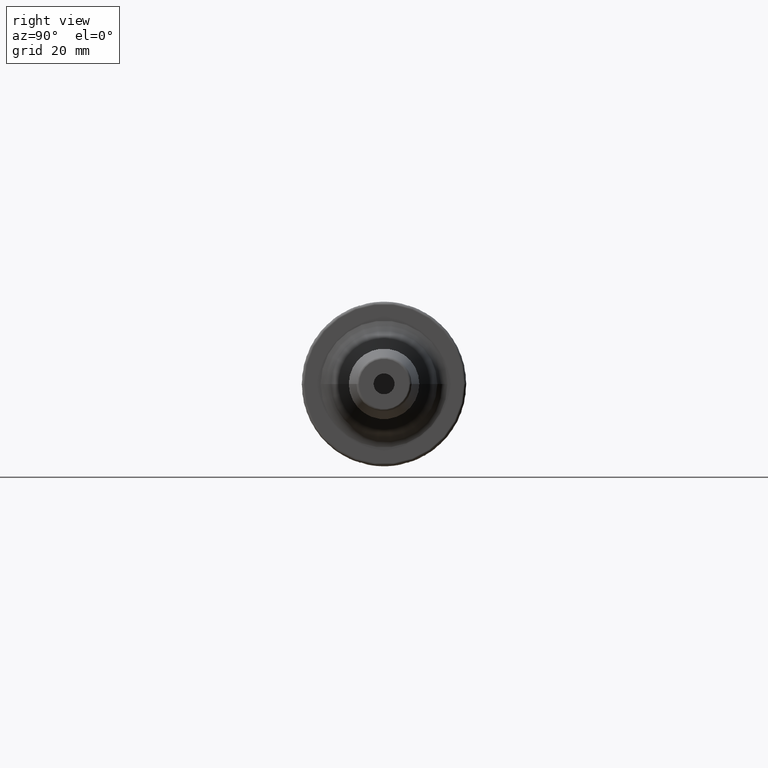
[diagram: clean part render]
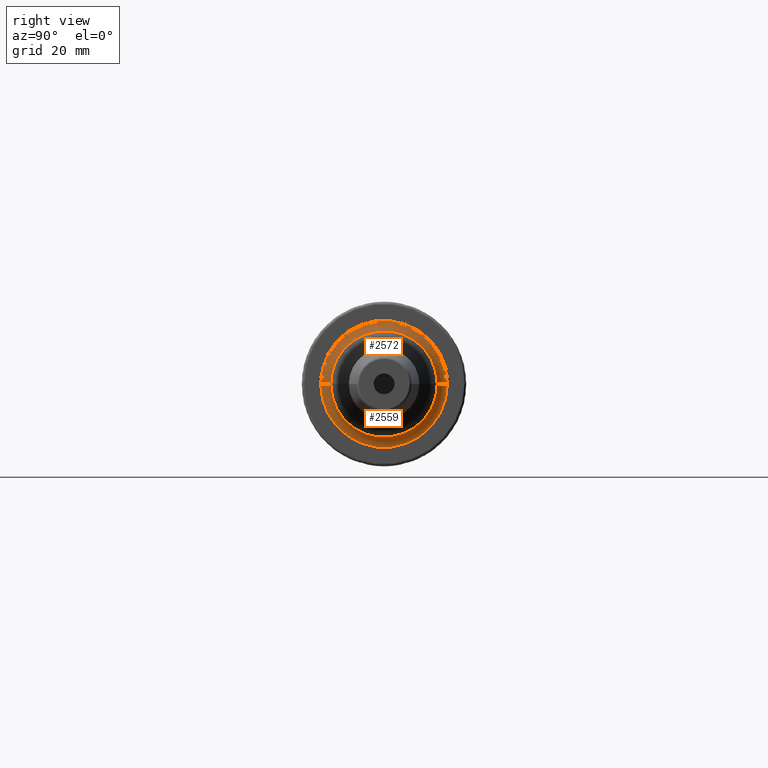
[diagram: same view with one multi-face feature highlighted, each face labeled with its STEP entity id]
A machine part, right view. The highlighted faces form ONE feature: a constant-radius fillet chain: 2 tangent blend faces with common blend radius 4 mm. The faces share edges in the B-rep.
Their STEP definitions:
[1] entity #2559 (Torus):
#836=CARTESIAN_POINT('',(2.7E1,0.E0,0.E0));
#837=DIRECTION('',(1.E0,0.E0,0.E0));
#838=DIRECTION('',(0.E0,-1.E0,0.E0));
#839=AXIS2_PLACEMENT_3D('',#836,#837,#838);
#846=CARTESIAN_POINT('',(3.1E1,-2.425148613529E1,3.502170775604E-12));
#847=DIRECTION('',(0.E0,-1.444105252046E-13,-1.E0));
#848=DIRECTION('',(-1.E0,1.758593271006E-13,0.E0));
#849=AXIS2_PLACEMENT_3D('',#846,#847,#848);
#851=CARTESIAN_POINT('',(3.1E1,2.425148613529E1,-3.504169177049E-12));
#852=DIRECTION('',(0.E0,1.444937919315E-13,1.E0));
#853=DIRECTION('',(-1.E0,-1.758593271006E-13,0.E0));
#854=AXIS2_PLACEMENT_3D('',#851,#852,#853);
#861=CARTESIAN_POINT('',(2.995918367347E1,0.E0,0.E0));
#862=DIRECTION('',(1.E0,0.E0,0.E0));
#863=DIRECTION('',(0.E0,-1.E0,0.E0));
#864=AXIS2_PLACEMENT_3D('',#861,#862,#863);
#1437=CARTESIAN_POINT('',(2.7E1,-2.425148613529E1,1.163276095454E-13));
#1438=CARTESIAN_POINT('',(2.7E1,2.425148613529E1,-1.192975600324E-13));
#1439=VERTEX_POINT('',#1437);
#1440=VERTEX_POINT('',#1438);
#1441=CARTESIAN_POINT('',(2.995918367347E1,-2.038927156663E1,0.E0));
#1442=CARTESIAN_POINT('',(2.995918367347E1,2.038927156663E1,0.E0));
#1443=VERTEX_POINT('',#1441);
#1444=VERTEX_POINT('',#1442);
#2545=CARTESIAN_POINT('',(3.1E1,0.E0,0.E0));
#2546=DIRECTION('',(1.E0,0.E0,0.E0));
#2547=DIRECTION('',(0.E0,-9.999503907163E-1,9.960728202673E-3));
#2548=AXIS2_PLACEMENT_3D('',#2545,#2546,#2547);
#2549=TOROIDAL_SURFACE('',#2548,2.425148613529E1,4.E0);
#2550=ORIENTED_EDGE('',*,*,#2538,.F.);
#2552=ORIENTED_EDGE('',*,*,#2551,.T.);
#2554=ORIENTED_EDGE('',*,*,#2553,.T.);
#2556=ORIENTED_EDGE('',*,*,#2555,.F.);
#2557=EDGE_LOOP('',(#2550,#2552,#2554,#2556));
#2558=FACE_OUTER_BOUND('',#2557,.F.);
#2559=ADVANCED_FACE('',(#2558),#2549,.F.);
#840=CIRCLE('',#839,2.425148613529E1);
#850=CIRCLE('',#849,4.E0);
#855=CIRCLE('',#854,4.E0);
#865=CIRCLE('',#864,2.038927156663E1);
#2538=EDGE_CURVE('',#1439,#1440,#840,.T.);
#2551=EDGE_CURVE('',#1439,#1443,#850,.T.);
#2553=EDGE_CURVE('',#1443,#1444,#865,.T.);
#2555=EDGE_CURVE('',#1440,#1444,#855,.T.);
[2] entity #2572 (Torus):
#841=CARTESIAN_POINT('',(2.7E1,0.E0,0.E0));
#842=DIRECTION('',(1.E0,0.E0,0.E0));
#843=DIRECTION('',(0.E0,1.E0,0.E0));
#844=AXIS2_PLACEMENT_3D('',#841,#842,#843);
#846=CARTESIAN_POINT('',(3.1E1,-2.425148613529E1,3.502170775604E-12));
#847=DIRECTION('',(0.E0,-1.444105252046E-13,-1.E0));
#848=DIRECTION('',(-1.E0,1.758593271006E-13,0.E0));
#849=AXIS2_PLACEMENT_3D('',#846,#847,#848);
#851=CARTESIAN_POINT('',(3.1E1,2.425148613529E1,-3.504169177049E-12));
#852=DIRECTION('',(0.E0,1.444937919315E-13,1.E0));
#853=DIRECTION('',(-1.E0,-1.758593271006E-13,0.E0));
#854=AXIS2_PLACEMENT_3D('',#851,#852,#853);
#856=CARTESIAN_POINT('',(2.995918367347E1,0.E0,0.E0));
#857=DIRECTION('',(1.E0,0.E0,0.E0));
#858=DIRECTION('',(0.E0,1.E0,0.E0));
#859=AXIS2_PLACEMENT_3D('',#856,#857,#858);
#1437=CARTESIAN_POINT('',(2.7E1,-2.425148613529E1,1.163276095454E-13));
#1438=CARTESIAN_POINT('',(2.7E1,2.425148613529E1,-1.192975600324E-13));
#1439=VERTEX_POINT('',#1437);
#1440=VERTEX_POINT('',#1438);
#1441=CARTESIAN_POINT('',(2.995918367347E1,-2.038927156663E1,0.E0));
#1442=CARTESIAN_POINT('',(2.995918367347E1,2.038927156663E1,0.E0));
#1443=VERTEX_POINT('',#1441);
#1444=VERTEX_POINT('',#1442);
#2560=CARTESIAN_POINT('',(3.1E1,0.E0,0.E0));
#2561=DIRECTION('',(1.E0,0.E0,0.E0));
#2562=DIRECTION('',(0.E0,9.999503907163E-1,-9.960728202673E-3));
#2563=AXIS2_PLACEMENT_3D('',#2560,#2561,#2562);
#2564=TOROIDAL_SURFACE('',#2563,2.425148613529E1,4.E0);
#2565=ORIENTED_EDGE('',*,*,#2540,.F.);
#2566=ORIENTED_EDGE('',*,*,#2555,.T.);
#2568=ORIENTED_EDGE('',*,*,#2567,.T.);
#2569=ORIENTED_EDGE('',*,*,#2551,.F.);
#2570=EDGE_LOOP('',(#2565,#2566,#2568,#2569));
#2571=FACE_OUTER_BOUND('',#2570,.F.);
#2572=ADVANCED_FACE('',(#2571),#2564,.F.);
#845=CIRCLE('',#844,2.425148613529E1);
#850=CIRCLE('',#849,4.E0);
#855=CIRCLE('',#854,4.E0);
#860=CIRCLE('',#859,2.038927156663E1);
#2540=EDGE_CURVE('',#1440,#1439,#845,.T.);
#2551=EDGE_CURVE('',#1439,#1443,#850,.T.);
#2555=EDGE_CURVE('',#1440,#1444,#855,.T.);
#2567=EDGE_CURVE('',#1444,#1443,#860,.T.);